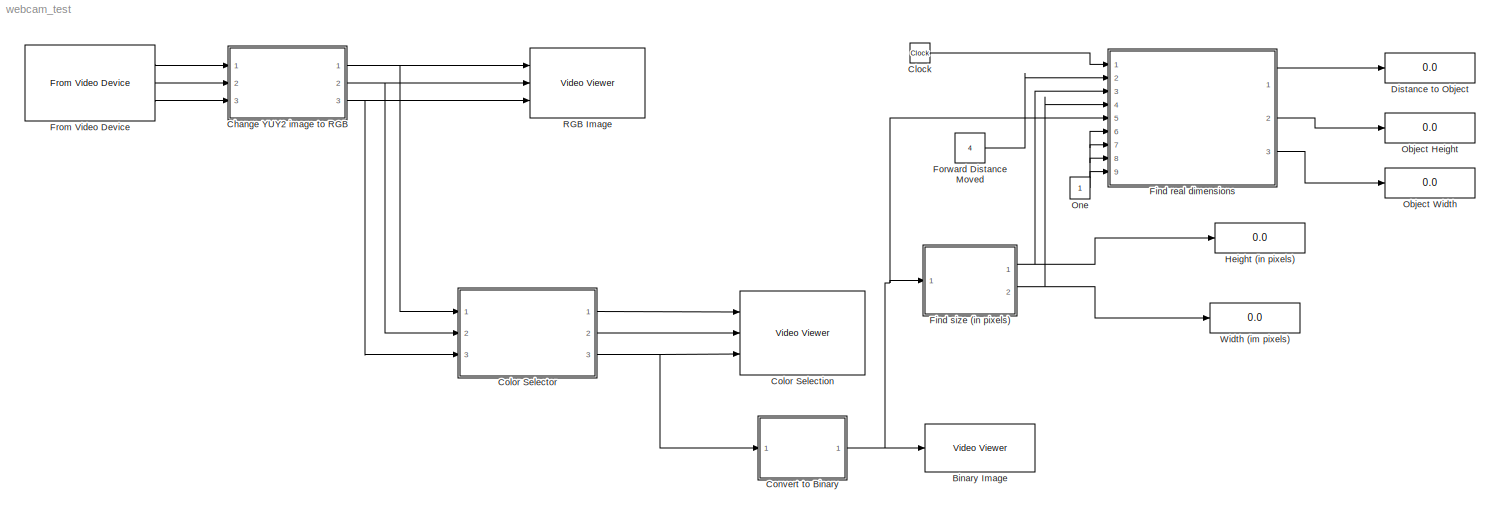
MODEL webcam_test
KIND model
BLOCK [Reference] Binary Image  REF=visionsinks/Video Viewer
  AxisZoom = on
  FigPos = [482 533 406 310]
  OpenAtMdlStart = on
  Ports = [1]
  SID = 14
  SourceBlock = visionsinks/Video Viewer
  SourceType = Video Viewer
  UserData = DataTag0
  UserDataPersistent = on
  colormapValue = jet(256)
  imagePorts = One multidimensional signal
  inputType = Obsolete7b
  maxInputVal = 255
  minInputVal = 0
  specRange = off
  trueSizedOnce = off
  useColorMap = off
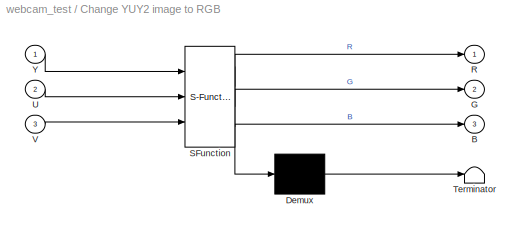
BLOCK [SubSystem] Change YUY2 image to RGB
  ErrorFcn = Stateflow.Translate.translate
  FunctionWithSeparateData = off
  MaskDescription = Embedded MATLAB block
  MaskDisplay = bgColor = Simulink.Root.ColorString2Rgb(get_param(gcbh, 'BackgroundColor')); image(imread('private/eml_membrane_16.png','png','BackgroundColor',bgColor(1:3)),'center'); disp([10 10 'YUY2toRGB']);
  MaskHideContents = off
  MaskIconFrame = on
  MaskIconOpaque = off
  MaskIconRotate = none
  MaskIconUnits = normalized
  MaskPortRotate = default
  MaskSelfModifiable = on
  MaskType = Stateflow
  MinAlgLoopOccurrences = off
  Opaque = off
  PermitHierarchicalResolution = ExplicitOnly
  Ports = [3, 3]
  PropExecContextOutsideSubsystem = off
  RTWSystemCode = Auto
  RequestExecContextInheritance = off
  SFBlockType = MATLAB Function
  SID = 1
  TreatAsAtomicUnit = on
BLOCK [Demux] Change YUY2 image to RGB/ Demux 
  Outputs = 1
  Ports = [1, 1]
  SID = 1::15
BLOCK [S-Function] Change YUY2 image to RGB/ SFunction 
  EnableBusSupport = on
  FunctionName = sf_sfun
  PortCounts = [3 4]
  Ports = [3, 4]
  SID = 1::14
  Tag = Stateflow S-Function webcam_test 1
BLOCK [Terminator] Change YUY2 image to RGB/ Terminator 
  SID = 1::17
BLOCK [Outport] Change YUY2 image to RGB/B
  IconDisplay = Port number
  Port = 3
  SID = 1::19
BLOCK [Outport] Change YUY2 image to RGB/G
  IconDisplay = Port number
  Port = 2
  SID = 1::18
BLOCK [Outport] Change YUY2 image to RGB/R
  IconDisplay = Port number
  SID = 1::5
BLOCK [Inport] Change YUY2 image to RGB/U
  IconDisplay = Port number
  Port = 2
  SID = 1::20
BLOCK [Inport] Change YUY2 image to RGB/V
  IconDisplay = Port number
  Port = 3
  SID = 1::21
BLOCK [Inport] Change YUY2 image to RGB/Y
  IconDisplay = Port number
  SID = 1::1
BLOCK [Clock] Clock
  Decimation = 30
  SID = 22
BLOCK [Reference] Color Selection  REF=visionsinks/Video Viewer
  AxisZoom = on
  FigPos = [67 663 787 535]
  OpenAtMdlStart = on
  Ports = [3]
  SID = 9
  SourceBlock = visionsinks/Video Viewer
  SourceType = Video Viewer
  UserData = DataTag1
  UserDataPersistent = on
  colormapValue = gray(256)
  imagePorts = Separate color signals
  inputType = Obsolete7b
  maxInputVal = 255
  minInputVal = 0
  specRange = off
  trueSizedOnce = off
  useColorMap = off
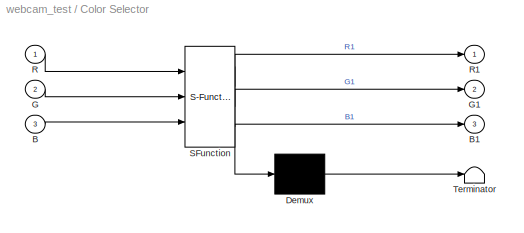
BLOCK [SubSystem] Color Selector
  ErrorFcn = Stateflow.Translate.translate
  FunctionWithSeparateData = off
  MaskDescription = Embedded MATLAB block
  MaskDisplay = bgColor = Simulink.Root.ColorString2Rgb(get_param(gcbh, 'BackgroundColor')); image(imread('private/eml_membrane_16.png','png','BackgroundColor',bgColor(1:3)),'center'); disp([10 10 'color_selection']);
  MaskHideContents = off
  MaskIconFrame = on
  MaskIconOpaque = off
  MaskIconRotate = none
  MaskIconUnits = normalized
  MaskPortRotate = default
  MaskSelfModifiable = on
  MaskType = Stateflow
  MinAlgLoopOccurrences = off
  Opaque = off
  PermitHierarchicalResolution = ExplicitOnly
  Ports = [3, 3]
  PropExecContextOutsideSubsystem = off
  RTWSystemCode = Auto
  RequestExecContextInheritance = off
  SFBlockType = MATLAB Function
  SID = 8
  TreatAsAtomicUnit = on
BLOCK [Demux] Color Selector/ Demux 
  Outputs = 1
  Ports = [1, 1]
  SID = 8::15
BLOCK [S-Function] Color Selector/ SFunction 
  EnableBusSupport = on
  FunctionName = sf_sfun
  PortCounts = [3 4]
  Ports = [3, 4]
  SID = 8::14
  Tag = Stateflow S-Function webcam_test 2
BLOCK [Terminator] Color Selector/ Terminator 
  SID = 8::17
BLOCK [Inport] Color Selector/B
  IconDisplay = Port number
  Port = 3
  SID = 8::19
BLOCK [Outport] Color Selector/B1
  IconDisplay = Port number
  Port = 3
  SID = 8::21
BLOCK [Inport] Color Selector/G
  IconDisplay = Port number
  Port = 2
  SID = 8::18
BLOCK [Outport] Color Selector/G1
  IconDisplay = Port number
  Port = 2
  SID = 8::20
BLOCK [Inport] Color Selector/R
  IconDisplay = Port number
  SID = 8::1
BLOCK [Outport] Color Selector/R1
  IconDisplay = Port number
  SID = 8::5
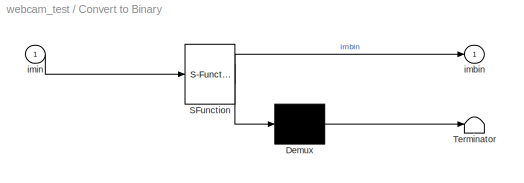
BLOCK [SubSystem] Convert to Binary
  ErrorFcn = Stateflow.Translate.translate
  FunctionWithSeparateData = off
  MaskDescription = Embedded MATLAB block
  MaskDisplay = bgColor = Simulink.Root.ColorString2Rgb(get_param(gcbh, 'BackgroundColor')); image(imread('private/eml_membrane_16.png','png','BackgroundColor',bgColor(1:3)),'center'); disp([10 10 'bin_conv']);
  MaskHideContents = off
  MaskIconFrame = on
  MaskIconOpaque = off
  MaskIconRotate = none
  MaskIconUnits = normalized
  MaskPortRotate = default
  MaskSelfModifiable = on
  MaskType = Stateflow
  MinAlgLoopOccurrences = off
  Opaque = off
  PermitHierarchicalResolution = ExplicitOnly
  Ports = [1, 1]
  PropExecContextOutsideSubsystem = off
  RTWSystemCode = Auto
  RequestExecContextInheritance = off
  SFBlockType = MATLAB Function
  SID = 13
  TreatAsAtomicUnit = on
BLOCK [Demux] Convert to Binary/ Demux 
  Outputs = 1
  Ports = [1, 1]
  SID = 13::15
BLOCK [S-Function] Convert to Binary/ SFunction 
  EnableBusSupport = on
  FunctionName = sf_sfun
  PortCounts = [1 2]
  Ports = [1, 2]
  SID = 13::14
  Tag = Stateflow S-Function webcam_test 3
BLOCK [Terminator] Convert to Binary/ Terminator 
  SID = 13::17
BLOCK [Outport] Convert to Binary/imbin
  IconDisplay = Port number
  SID = 13::5
BLOCK [Inport] Convert to Binary/imin
  IconDisplay = Port number
  SID = 13::1
BLOCK [Display] Distance to Object
  Decimation = 1
  Lockdown = off
  Ports = [1]
  SID = 24
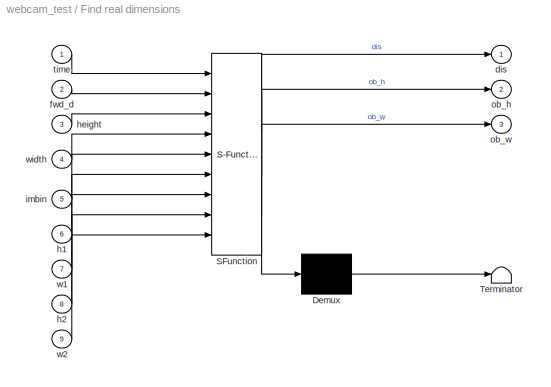
BLOCK [SubSystem] Find real dimensions
  ErrorFcn = Stateflow.Translate.translate
  FunctionWithSeparateData = off
  MaskDescription = Embedded MATLAB block
  MaskDisplay = bgColor = Simulink.Root.ColorString2Rgb(get_param(gcbh, 'BackgroundColor')); image(imread('private/eml_membrane_16.png','png','BackgroundColor',bgColor(1:3)),'center'); disp([10 10 'real_dim_find']);
  MaskHideContents = off
  MaskIconFrame = on
  MaskIconOpaque = off
  MaskIconRotate = none
  MaskIconUnits = normalized
  MaskPortRotate = default
  MaskSelfModifiable = on
  MaskType = Stateflow
  MinAlgLoopOccurrences = off
  Opaque = off
  PermitHierarchicalResolution = ExplicitOnly
  Ports = [9, 3]
  PropExecContextOutsideSubsystem = off
  RTWSystemCode = Auto
  RequestExecContextInheritance = off
  SFBlockType = MATLAB Function
  SID = 21
  TreatAsAtomicUnit = on
BLOCK [Demux] Find real dimensions/ Demux 
  Outputs = 1
  Ports = [1, 1]
  SID = 21::15
BLOCK [S-Function] Find real dimensions/ SFunction 
  EnableBusSupport = on
  FunctionName = sf_sfun
  PortCounts = [9 4]
  Ports = [9, 4]
  SID = 21::14
  Tag = Stateflow S-Function webcam_test 5
BLOCK [Terminator] Find real dimensions/ Terminator 
  SID = 21::17
BLOCK [Outport] Find real dimensions/dis
  IconDisplay = Port number
  SID = 21::5
BLOCK [Inport] Find real dimensions/fwd_d
  IconDisplay = Port number
  Port = 2
  SID = 21::18
BLOCK [Inport] Find real dimensions/h1
  IconDisplay = Port number
  Port = 6
  SID = 21::24
BLOCK [Inport] Find real dimensions/h2
  IconDisplay = Port number
  Port = 8
  SID = 21::26
BLOCK [Inport] Find real dimensions/height
  IconDisplay = Port number
  Port = 3
  SID = 21::19
BLOCK [Inport] Find real dimensions/imbin
  IconDisplay = Port number
  Port = 5
  SID = 21::23
BLOCK [Outport] Find real dimensions/ob_h
  IconDisplay = Port number
  Port = 2
  SID = 21::21
BLOCK [Outport] Find real dimensions/ob_w
  IconDisplay = Port number
  Port = 3
  SID = 21::22
BLOCK [Inport] Find real dimensions/time
  IconDisplay = Port number
  SID = 21::1
BLOCK [Inport] Find real dimensions/w1
  IconDisplay = Port number
  Port = 7
  SID = 21::25
BLOCK [Inport] Find real dimensions/w2
  IconDisplay = Port number
  Port = 9
  SID = 21::27
BLOCK [Inport] Find real dimensions/width
  IconDisplay = Port number
  Port = 4
  SID = 21::20
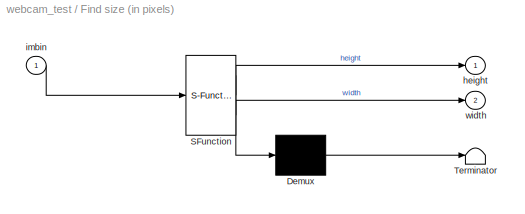
BLOCK [SubSystem] Find size (in pixels)
  ErrorFcn = Stateflow.Translate.translate
  FunctionWithSeparateData = off
  MaskDescription = Embedded MATLAB block
  MaskDisplay = bgColor = Simulink.Root.ColorString2Rgb(get_param(gcbh, 'BackgroundColor')); image(imread('private/eml_membrane_16.png','png','BackgroundColor',bgColor(1:3)),'center'); disp([10 10 'hw_find']);
  MaskHideContents = off
  MaskIconFrame = on
  MaskIconOpaque = off
  MaskIconRotate = none
  MaskIconUnits = normalized
  MaskPortRotate = default
  MaskSelfModifiable = on
  MaskType = Stateflow
  MinAlgLoopOccurrences = off
  Opaque = off
  PermitHierarchicalResolution = ExplicitOnly
  Ports = [1, 2]
  PropExecContextOutsideSubsystem = off
  RTWSystemCode = Auto
  RequestExecContextInheritance = off
  SFBlockType = MATLAB Function
  SID = 15
  TreatAsAtomicUnit = on
BLOCK [Demux] Find size (in pixels)/ Demux 
  Outputs = 1
  Ports = [1, 1]
  SID = 15::15
BLOCK [S-Function] Find size (in pixels)/ SFunction 
  EnableBusSupport = on
  FunctionName = sf_sfun
  PortCounts = [1 3]
  Ports = [1, 3]
  SID = 15::14
  Tag = Stateflow S-Function webcam_test 4
BLOCK [Terminator] Find size (in pixels)/ Terminator 
  SID = 15::17
BLOCK [Outport] Find size (in pixels)/height
  IconDisplay = Port number
  SID = 15::5
BLOCK [Inport] Find size (in pixels)/imbin
  IconDisplay = Port number
  SID = 15::1
BLOCK [Outport] Find size (in pixels)/width
  IconDisplay = Port number
  Port = 2
  SID = 15::18
BLOCK [Constant] Forward Distance Moved
  SID = 23
  Value = 4
BLOCK [Reference] From Video Device  REF=imaqlib/From Video Device
  BlockHandle = 1973.0006
  CanDoHWTrigger = no
  DataType = uint8
  DevXMLPath = C:\\Program Files<path>
  Device = winvideo 1 (Microsoft LifeCam HD-3000)
  DeviceMenu = winvideo 1 (Microsoft LifeCam HD-3000)
  EnableHWTrigger = off
  EngLibPath = C:\\Program Files<path>
  EngXMLPath = C:\\Program Files<path>
  ObjConstructor = videoinput('winvideo', 1)
  OutputPortsMode = Separate color signals
  Ports = [0, 3]
  ROIColumn = 0
  ROIHeight = 480
  ROIPosition = [0 0 480 640]
  ROIRow = 0
  ROIWidth = 640
  ReturnedColorSpace = YCbCr
  SID = 2
  SampleTime = 1/30
  SourceBlock = imaqlib/From Video Device
  SourceType = From Video Device
  TriggerConfiguration = none/none
  UserData = DataTag2
  UserDataPersistent = on
  VideoFormat = YUY2_640x480
  VideoFormatMenu = YUY2_640x480
  VideoSource = input1
BLOCK [Display] Height (in pixels)
  Decimation = 1
  Lockdown = off
  Ports = [1]
  SID = 19
BLOCK [Display] Object Height
  Decimation = 1
  Lockdown = off
  Ports = [1]
  SID = 25
BLOCK [Display] Object Width
  Decimation = 1
  Lockdown = off
  Ports = [1]
  SID = 26
BLOCK [Constant] One
  SID = 30
BLOCK [Reference] RGB Image  REF=visionsinks/Video Viewer
  AxisZoom = on
  FigPos = [175 685 640 500]
  OpenAtMdlStart = on
  Ports = [3]
  SID = 7
  SourceBlock = visionsinks/Video Viewer
  SourceType = Video Viewer
  UserData = DataTag3
  UserDataPersistent = on
  colormapValue = gray(256)
  imagePorts = Separate color signals
  inputType = Obsolete7b
  maxInputVal = 255
  minInputVal = 0
  specRange = off
  trueSizedOnce = off
  useColorMap = off
BLOCK [Display] Width (im pixels)
  Decimation = 1
  Lockdown = off
  Ports = [1]
  SID = 20
LINE Change YUY2 image to RGB/ Demux :1 -> Change YUY2 image to RGB/ Terminator :1
LINE Change YUY2 image to RGB/ SFunction :1 -> Change YUY2 image to RGB/ Demux :1
LINE Change YUY2 image to RGB/ SFunction :2 -> Change YUY2 image to RGB/R:1
LINE Change YUY2 image to RGB/ SFunction :3 -> Change YUY2 image to RGB/G:1
LINE Change YUY2 image to RGB/ SFunction :4 -> Change YUY2 image to RGB/B:1
LINE Change YUY2 image to RGB/U:1 -> Change YUY2 image to RGB/ SFunction :2
LINE Change YUY2 image to RGB/V:1 -> Change YUY2 image to RGB/ SFunction :3
LINE Change YUY2 image to RGB/Y:1 -> Change YUY2 image to RGB/ SFunction :1
NET Change YUY2 image to RGB:1 -> Color Selector:1, RGB Image:1
NET Change YUY2 image to RGB:2 -> Color Selector:2, RGB Image:2
NET Change YUY2 image to RGB:3 -> Color Selector:3, RGB Image:3
LINE Clock:1 -> Find real dimensions:1
LINE Color Selector/ Demux :1 -> Color Selector/ Terminator :1
LINE Color Selector/ SFunction :1 -> Color Selector/ Demux :1
LINE Color Selector/ SFunction :2 -> Color Selector/R1:1
LINE Color Selector/ SFunction :3 -> Color Selector/G1:1
LINE Color Selector/ SFunction :4 -> Color Selector/B1:1
LINE Color Selector/B:1 -> Color Selector/ SFunction :3
LINE Color Selector/G:1 -> Color Selector/ SFunction :2
LINE Color Selector/R:1 -> Color Selector/ SFunction :1
LINE Color Selector:1 -> Color Selection:1
LINE Color Selector:2 -> Color Selection:2
NET Color Selector:3 -> Color Selection:3, Convert to Binary:1
LINE Convert to Binary/ Demux :1 -> Convert to Binary/ Terminator :1
LINE Convert to Binary/ SFunction :1 -> Convert to Binary/ Demux :1
LINE Convert to Binary/ SFunction :2 -> Convert to Binary/imbin:1
LINE Convert to Binary/imin:1 -> Convert to Binary/ SFunction :1
NET Convert to Binary:1 -> Binary Image:1, Find real dimensions:5, Find size (in pixels):1
LINE Find real dimensions/ Demux :1 -> Find real dimensions/ Terminator :1
LINE Find real dimensions/ SFunction :1 -> Find real dimensions/ Demux :1
LINE Find real dimensions/ SFunction :2 -> Find real dimensions/dis:1
LINE Find real dimensions/ SFunction :3 -> Find real dimensions/ob_h:1
LINE Find real dimensions/ SFunction :4 -> Find real dimensions/ob_w:1
LINE Find real dimensions/fwd_d:1 -> Find real dimensions/ SFunction :2
LINE Find real dimensions/h1:1 -> Find real dimensions/ SFunction :6
LINE Find real dimensions/h2:1 -> Find real dimensions/ SFunction :8
LINE Find real dimensions/height:1 -> Find real dimensions/ SFunction :3
LINE Find real dimensions/imbin:1 -> Find real dimensions/ SFunction :5
LINE Find real dimensions/time:1 -> Find real dimensions/ SFunction :1
LINE Find real dimensions/w1:1 -> Find real dimensions/ SFunction :7
LINE Find real dimensions/w2:1 -> Find real dimensions/ SFunction :9
LINE Find real dimensions/width:1 -> Find real dimensions/ SFunction :4
LINE Find real dimensions:1 -> Distance to Object:1
LINE Find real dimensions:2 -> Object Height:1
LINE Find real dimensions:3 -> Object Width:1
LINE Find size (in pixels)/ Demux :1 -> Find size (in pixels)/ Terminator :1
LINE Find size (in pixels)/ SFunction :1 -> Find size (in pixels)/ Demux :1
LINE Find size (in pixels)/ SFunction :2 -> Find size (in pixels)/height:1
LINE Find size (in pixels)/ SFunction :3 -> Find size (in pixels)/width:1
LINE Find size (in pixels)/imbin:1 -> Find size (in pixels)/ SFunction :1
NET Find size (in pixels):1 -> Find real dimensions:3, Height (in pixels):1
NET Find size (in pixels):2 -> Find real dimensions:4, Width (im pixels):1
LINE Forward Distance Moved:1 -> Find real dimensions:2
LINE From Video Device:1 -> Change YUY2 image to RGB:1
LINE From Video Device:2 -> Change YUY2 image to RGB:2
LINE From Video Device:3 -> Change YUY2 image to RGB:3
NET One:1 -> Find real dimensions:6, Find real dimensions:7, Find real dimensions:8, Find real dimensions:9
note: NET lines group one-source signal fan-out (src -> all destinations, sorted); 1:1 wires keep LINE
CHART Change YUY2 image to RGB states=1 transitions=1
  STATE_LABEL 'eML_blk_kernel()'
CHART Color Selector states=1 transitions=1
  STATE_LABEL 'eML_blk_kernel()'
CHART Convert to Binary states=1 transitions=1
  STATE_LABEL 'eML_blk_kernel()'
CHART Find size (in pixels) states=1 transitions=1
  STATE_LABEL 'eML_blk_kernel()'
CHART Find real dimensions states=1 transitions=1
  STATE_LABEL 'eML_blk_kernel()'
note: 3 file-system paths scrubbed to <path> (not preserved elsewhere — flat text is the only slx artifact)
